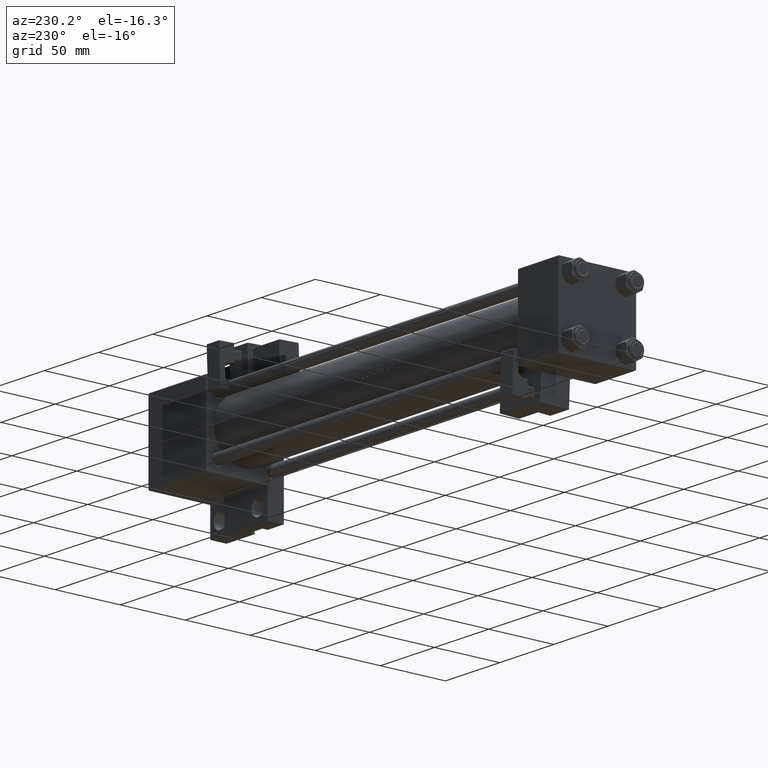
[diagram: clean part render]
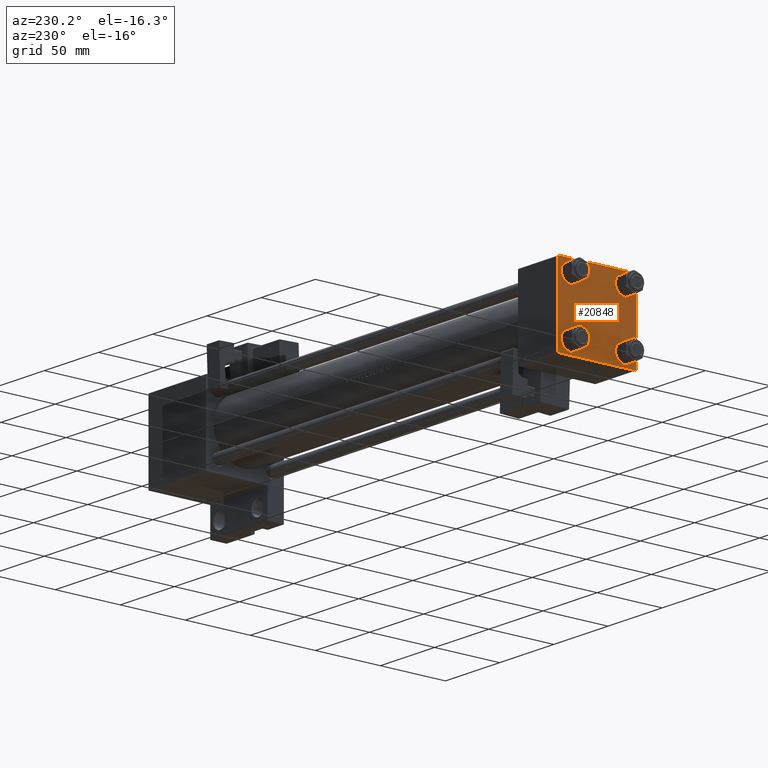
[diagram: same view with one face highlighted and labeled with its STEP entity id]
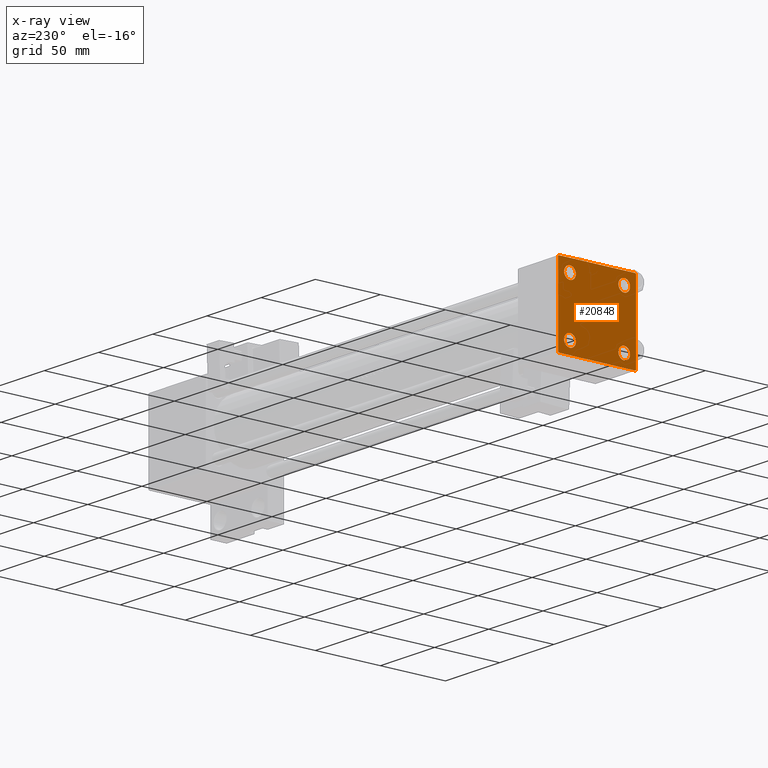
[diagram: x-ray of the same camera — body ghosted, the highlighted face saturated]
A machine part, auxiliary view. The second image highlights one B-rep face of the part: STEP entity #20848.
The next image is the same camera in x-ray: the body ghosted, the highlighted face saturated — about 0% of this face is hidden behind the body in this view.
In plain terms, the highlighted planar face has unit normal (-1, 0, -0).
Its self-contained STEP definition (entity closure, byte-faithful):
#6 = CIRCLE ( 'NONE', #35387, 4.500000000000017764 ) ;
#412 = EDGE_CURVE ( 'NONE', #8398, #21693, #8836, .T. ) ;
#1493 = CARTESIAN_POINT ( 'NONE',  ( 0.000000000000000000, -20.84999999999999076, -20.85000000000000497 ) ) ;
#2215 = ORIENTED_EDGE ( 'NONE', *, *, #44790, .T. ) ;
#2778 = EDGE_CURVE ( 'NONE', #3707, #17080, #6931, .T. ) ;
#2902 = DIRECTION ( 'NONE',  ( 1.000000000000000000, -0.000000000000000000, 0.000000000000000000 ) ) ;
#3134 = EDGE_LOOP ( 'NONE', ( #34808, #32338 ) ) ;
#3707 = VERTEX_POINT ( 'NONE', #9059 ) ;
#4713 = VERTEX_POINT ( 'NONE', #16030 ) ;
#5073 = DIRECTION ( 'NONE',  ( 0.000000000000000000, 0.000000000000000000, 1.000000000000000000 ) ) ;
#5105 = FACE_OUTER_BOUND ( 'NONE', #13251, .T. ) ;
#5609 = DIRECTION ( 'NONE',  ( 1.000000000000000000, -0.000000000000000000, 0.000000000000000000 ) ) ;
#6138 = FACE_BOUND ( 'NONE', #33236, .T. ) ;
#6175 = ORIENTED_EDGE ( 'NONE', *, *, #7743, .T. ) ;
#6359 = DIRECTION ( 'NONE',  ( 1.000000000000000000, -0.000000000000000000, 0.000000000000000000 ) ) ;
#6931 = LINE ( 'NONE', #38401, #27246 ) ;
#6946 = CARTESIAN_POINT ( 'NONE',  ( 0.000000000000000000, -20.84999999999999076, 20.85000000000000497 ) ) ;
#7178 = EDGE_CURVE ( 'NONE', #20376, #39504, #38024, .T. ) ;
#7743 = EDGE_CURVE ( 'NONE', #28323, #26881, #50815, .T. ) ;
#8398 = VERTEX_POINT ( 'NONE', #24712 ) ;
#8836 = LINE ( 'NONE', #12680, #35420 ) ;
#8953 = DIRECTION ( 'NONE',  ( -1.000000000000000000, 0.000000000000000000, -0.000000000000000000 ) ) ;
#9059 = CARTESIAN_POINT ( 'NONE',  ( 0.000000000000000000, 29.99999999999999289, 29.50000000000000000 ) ) ;
#9095 = LINE ( 'NONE', #40582, #30544 ) ;
#9142 = EDGE_CURVE ( 'NONE', #50510, #29211, #12734, .T. ) ;
#9487 = EDGE_CURVE ( 'NONE', #8398, #29211, #41783, .T. ) ;
#10282 = CIRCLE ( 'NONE', #11127, 4.500000000000017764 ) ;
#10347 = CARTESIAN_POINT ( 'NONE',  ( 0.000000000000000000, 20.84999999999999787, 20.85000000000000142 ) ) ;
#10533 = DIRECTION ( 'NONE',  ( 0.000000000000000000, 0.000000000000000000, 1.000000000000000000 ) ) ;
#10541 = DIRECTION ( 'NONE',  ( -0.000000000000000000, 0.7071067811865474617, 0.7071067811865474617 ) ) ;
#11127 = AXIS2_PLACEMENT_3D ( 'NONE', #10347, #2902, #38714 ) ;
#11425 = ORIENTED_EDGE ( 'NONE', *, *, #18064, .T. ) ;
#11724 = ORIENTED_EDGE ( 'NONE', *, *, #25796, .T. ) ;
#11758 = VECTOR ( 'NONE', #12614, 999.9999999999998863 ) ;
#11786 = CIRCLE ( 'NONE', #40653, 4.500000000000017764 ) ;
#11820 = EDGE_LOOP ( 'NONE', ( #35990, #40155 ) ) ;
#11994 = AXIS2_PLACEMENT_3D ( 'NONE', #43795, #44311, #23922 ) ;
#12401 = CIRCLE ( 'NONE', #32184, 4.500000000000017764 ) ;
#12550 = CARTESIAN_POINT ( 'NONE',  ( 0.000000000000000000, -29.49999999999998579, 29.99999999999999289 ) ) ;
#12614 = DIRECTION ( 'NONE',  ( -0.000000000000000000, -0.7071067811865574537, -0.7071067811865376918 ) ) ;
#12680 = CARTESIAN_POINT ( 'NONE',  ( 0.000000000000000000, -30.00000000000000000, 29.99999999999999289 ) ) ;
#12734 = LINE ( 'NONE', #40624, #25704 ) ;
#13184 = ORIENTED_EDGE ( 'NONE', *, *, #7178, .T. ) ;
#13251 = EDGE_LOOP ( 'NONE', ( #27558, #11724, #6175, #33137, #21419, #14776, #33221, #2215 ) ) ;
#14694 = EDGE_CURVE ( 'NONE', #17744, #21627, #10282, .T. ) ;
#14776 = ORIENTED_EDGE ( 'NONE', *, *, #9487, .T. ) ;
#14840 = EDGE_CURVE ( 'NONE', #16252, #4713, #28382, .T. ) ;
#16030 = CARTESIAN_POINT ( 'NONE',  ( 0.000000000000000000, -20.84999999999999076, -25.35000000000002274 ) ) ;
#16252 = VERTEX_POINT ( 'NONE', #39997 ) ;
#16682 = CARTESIAN_POINT ( 'NONE',  ( 0.000000000000000000, 0.000000000000000000, 0.000000000000000000 ) ) ;
#16767 = EDGE_CURVE ( 'NONE', #38698, #23327, #21063, .T. ) ;
#17077 = CIRCLE ( 'NONE', #31892, 4.500000000000017764 ) ;
#17080 = VERTEX_POINT ( 'NONE', #27003 ) ;
#17744 = VERTEX_POINT ( 'NONE', #32192 ) ;
#18064 = EDGE_CURVE ( 'NONE', #4713, #16252, #17077, .T. ) ;
#18853 = CARTESIAN_POINT ( 'NONE',  ( 0.000000000000000000, 29.99999999999999289, -30.00000000000000000 ) ) ;
#18965 = CARTESIAN_POINT ( 'NONE',  ( 0.000000000000000000, 20.84999999999999787, -25.35000000000001918 ) ) ;
#19420 = ORIENTED_EDGE ( 'NONE', *, *, #14840, .T. ) ;
#20376 = VERTEX_POINT ( 'NONE', #49050 ) ;
#20848 = ADVANCED_FACE ( 'NONE', ( #6138, #37074, #24668, #21589, #5105 ), #37602, .T. ) ;
#20945 = DIRECTION ( 'NONE',  ( 0.000000000000000000, 0.000000000000000000, -1.000000000000000000 ) ) ;
#21063 = CIRCLE ( 'NONE', #11994, 4.500000000000017764 ) ;
#21319 = CARTESIAN_POINT ( 'NONE',  ( 0.000000000000000000, -20.84999999999999076, -20.85000000000000497 ) ) ;
#21419 = ORIENTED_EDGE ( 'NONE', *, *, #412, .F. ) ;
#21589 = FACE_BOUND ( 'NONE', #3134, .T. ) ;
#21627 = VERTEX_POINT ( 'NONE', #41282 ) ;
#21693 = VERTEX_POINT ( 'NONE', #46648 ) ;
#22071 = DIRECTION ( 'NONE',  ( 0.000000000000000000, 0.000000000000000000, 1.000000000000000000 ) ) ;
#22153 = CARTESIAN_POINT ( 'NONE',  ( -0.000000000000000000, -29.74999999999999645, 29.74999999999999645 ) ) ;
#22659 = DIRECTION ( 'NONE',  ( 1.000000000000000000, -0.000000000000000000, 0.000000000000000000 ) ) ;
#22902 = CARTESIAN_POINT ( 'NONE',  ( 0.000000000000000000, 29.49999999999997868, -30.00000000000000000 ) ) ;
#23327 = VERTEX_POINT ( 'NONE', #18965 ) ;
#23922 = DIRECTION ( 'NONE',  ( 0.000000000000000000, 0.000000000000000000, 1.000000000000000000 ) ) ;
#24668 = FACE_BOUND ( 'NONE', #11820, .T. ) ;
#24712 = CARTESIAN_POINT ( 'NONE',  ( 0.000000000000000000, -30.00000000000000000, 29.49999999999999289 ) ) ;
#25125 = DIRECTION ( 'NONE',  ( 0.000000000000000000, -1.000000000000000000, -1.156482317317871725E-16 ) ) ;
#25704 = VECTOR ( 'NONE', #25125, 1000.000000000000000 ) ;
#25796 = EDGE_CURVE ( 'NONE', #17080, #28323, #32223, .T. ) ;
#26239 = CARTESIAN_POINT ( 'NONE',  ( 0.000000000000000000, -20.84999999999999076, 20.85000000000000497 ) ) ;
#26487 = DIRECTION ( 'NONE',  ( 1.000000000000000000, -0.000000000000000000, 0.000000000000000000 ) ) ;
#26881 = VERTEX_POINT ( 'NONE', #38439 ) ;
#27003 = CARTESIAN_POINT ( 'NONE',  ( 0.000000000000000000, 29.99999999999999289, -29.50000000000000000 ) ) ;
#27129 = CARTESIAN_POINT ( 'NONE',  ( 0.000000000000000000, 20.84999999999999787, -16.34999999999998366 ) ) ;
#27246 = VECTOR ( 'NONE', #30886, 1000.000000000000000 ) ;
#27558 = ORIENTED_EDGE ( 'NONE', *, *, #2778, .T. ) ;
#28323 = VERTEX_POINT ( 'NONE', #22902 ) ;
#28382 = CIRCLE ( 'NONE', #45696, 4.500000000000017764 ) ;
#28772 = CARTESIAN_POINT ( 'NONE',  ( 0.000000000000000000, 20.84999999999999787, 20.85000000000000142 ) ) ;
#29211 = VERTEX_POINT ( 'NONE', #12550 ) ;
#29743 = AXIS2_PLACEMENT_3D ( 'NONE', #16682, #8953, #36558 ) ;
#30544 = VECTOR ( 'NONE', #41354, 1000.000000000000114 ) ;
#30886 = DIRECTION ( 'NONE',  ( 0.000000000000000000, 0.000000000000000000, -1.000000000000000000 ) ) ;
#31892 = AXIS2_PLACEMENT_3D ( 'NONE', #1493, #6359, #44784 ) ;
#32184 = AXIS2_PLACEMENT_3D ( 'NONE', #26239, #26487, #34241 ) ;
#32192 = CARTESIAN_POINT ( 'NONE',  ( 0.000000000000000000, 20.84999999999999787, 25.35000000000001918 ) ) ;
#32223 = LINE ( 'NONE', #47951, #11758 ) ;
#32338 = ORIENTED_EDGE ( 'NONE', *, *, #43688, .T. ) ;
#33137 = ORIENTED_EDGE ( 'NONE', *, *, #44408, .T. ) ;
#33170 = DIRECTION ( 'NONE',  ( 1.000000000000000000, -0.000000000000000000, 0.000000000000000000 ) ) ;
#33221 = ORIENTED_EDGE ( 'NONE', *, *, #9142, .F. ) ;
#33236 = EDGE_LOOP ( 'NONE', ( #46896, #13184 ) ) ;
#33502 = CARTESIAN_POINT ( 'NONE',  ( 0.000000000000000000, -20.84999999999999076, 25.35000000000002274 ) ) ;
#34241 = DIRECTION ( 'NONE',  ( 0.000000000000000000, 0.000000000000000000, 1.000000000000000000 ) ) ;
#34583 = DIRECTION ( 'NONE',  ( 0.000000000000000000, -1.000000000000000000, -1.156482317317871725E-16 ) ) ;
#34808 = ORIENTED_EDGE ( 'NONE', *, *, #14694, .T. ) ;
#35387 = AXIS2_PLACEMENT_3D ( 'NONE', #28772, #33170, #5073 ) ;
#35420 = VECTOR ( 'NONE', #20945, 1000.000000000000000 ) ;
#35990 = ORIENTED_EDGE ( 'NONE', *, *, #16767, .T. ) ;
#36534 = CARTESIAN_POINT ( 'NONE',  ( 0.000000000000000000, 29.49999999999999289, 30.00000000000000000 ) ) ;
#36558 = DIRECTION ( 'NONE',  ( -0.000000000000000000, 0.000000000000000000, 1.000000000000000000 ) ) ;
#37061 = DIRECTION ( 'NONE',  ( 0.000000000000000000, 0.000000000000000000, 1.000000000000000000 ) ) ;
#37074 = FACE_BOUND ( 'NONE', #42951, .T. ) ;
#37312 = CARTESIAN_POINT ( 'NONE',  ( 0.000000000000000000, 20.84999999999999787, -20.85000000000000142 ) ) ;
#37602 = PLANE ( 'NONE',  #29743 ) ;
#37989 = AXIS2_PLACEMENT_3D ( 'NONE', #6946, #22659, #10533 ) ;
#38024 = CIRCLE ( 'NONE', #37989, 4.500000000000017764 ) ;
#38075 = DIRECTION ( 'NONE',  ( 1.000000000000000000, -0.000000000000000000, 0.000000000000000000 ) ) ;
#38401 = CARTESIAN_POINT ( 'NONE',  ( 0.000000000000000000, 29.99999999999999289, 30.00000000000000000 ) ) ;
#38439 = CARTESIAN_POINT ( 'NONE',  ( 0.000000000000000000, -29.50000000000000000, -30.00000000000000711 ) ) ;
#38698 = VERTEX_POINT ( 'NONE', #27129 ) ;
#38714 = DIRECTION ( 'NONE',  ( 0.000000000000000000, 0.000000000000000000, 1.000000000000000000 ) ) ;
#38875 = VECTOR ( 'NONE', #34583, 1000.000000000000000 ) ;
#39504 = VERTEX_POINT ( 'NONE', #33502 ) ;
#39997 = CARTESIAN_POINT ( 'NONE',  ( 0.000000000000000000, -20.84999999999999076, -16.34999999999998721 ) ) ;
#40155 = ORIENTED_EDGE ( 'NONE', *, *, #50595, .T. ) ;
#40582 = CARTESIAN_POINT ( 'NONE',  ( 0.000000000000000000, 29.74999999999999645, 29.74999999999999645 ) ) ;
#40624 = CARTESIAN_POINT ( 'NONE',  ( 0.000000000000000000, 29.99999999999999289, 30.00000000000000000 ) ) ;
#40653 = AXIS2_PLACEMENT_3D ( 'NONE', #37312, #38075, #22071 ) ;
#41282 = CARTESIAN_POINT ( 'NONE',  ( 0.000000000000000000, 20.84999999999999787, 16.34999999999998366 ) ) ;
#41354 = DIRECTION ( 'NONE',  ( 0.000000000000000000, 0.7071067811865474617, -0.7071067811865474617 ) ) ;
#41761 = DIRECTION ( 'NONE',  ( 0.000000000000000000, -0.7071067811865474617, 0.7071067811865474617 ) ) ;
#41783 = LINE ( 'NONE', #22153, #46320 ) ;
#42951 = EDGE_LOOP ( 'NONE', ( #19420, #11425 ) ) ;
#43688 = EDGE_CURVE ( 'NONE', #21627, #17744, #6, .T. ) ;
#43795 = CARTESIAN_POINT ( 'NONE',  ( 0.000000000000000000, 20.84999999999999787, -20.85000000000000142 ) ) ;
#44311 = DIRECTION ( 'NONE',  ( 1.000000000000000000, -0.000000000000000000, 0.000000000000000000 ) ) ;
#44369 = VECTOR ( 'NONE', #41761, 1000.000000000000114 ) ;
#44408 = EDGE_CURVE ( 'NONE', #26881, #21693, #50480, .T. ) ;
#44784 = DIRECTION ( 'NONE',  ( 0.000000000000000000, 0.000000000000000000, 1.000000000000000000 ) ) ;
#44790 = EDGE_CURVE ( 'NONE', #50510, #3707, #9095, .T. ) ;
#44967 = EDGE_CURVE ( 'NONE', #39504, #20376, #12401, .T. ) ;
#45696 = AXIS2_PLACEMENT_3D ( 'NONE', #21319, #5609, #37061 ) ;
#46100 = CARTESIAN_POINT ( 'NONE',  ( 0.000000000000000000, -29.75000000000001066, -29.75000000000001066 ) ) ;
#46320 = VECTOR ( 'NONE', #10541, 1000.000000000000114 ) ;
#46648 = CARTESIAN_POINT ( 'NONE',  ( 0.000000000000000000, -30.00000000000000000, -29.50000000000001776 ) ) ;
#46896 = ORIENTED_EDGE ( 'NONE', *, *, #44967, .T. ) ;
#47951 = CARTESIAN_POINT ( 'NONE',  ( 0.000000000000000000, 29.74999999999957723, -29.75000000000040501 ) ) ;
#49050 = CARTESIAN_POINT ( 'NONE',  ( 0.000000000000000000, -20.84999999999999076, 16.34999999999998721 ) ) ;
#50480 = LINE ( 'NONE', #46100, #44369 ) ;
#50510 = VERTEX_POINT ( 'NONE', #36534 ) ;
#50595 = EDGE_CURVE ( 'NONE', #23327, #38698, #11786, .T. ) ;
#50815 = LINE ( 'NONE', #18853, #38875 ) ;